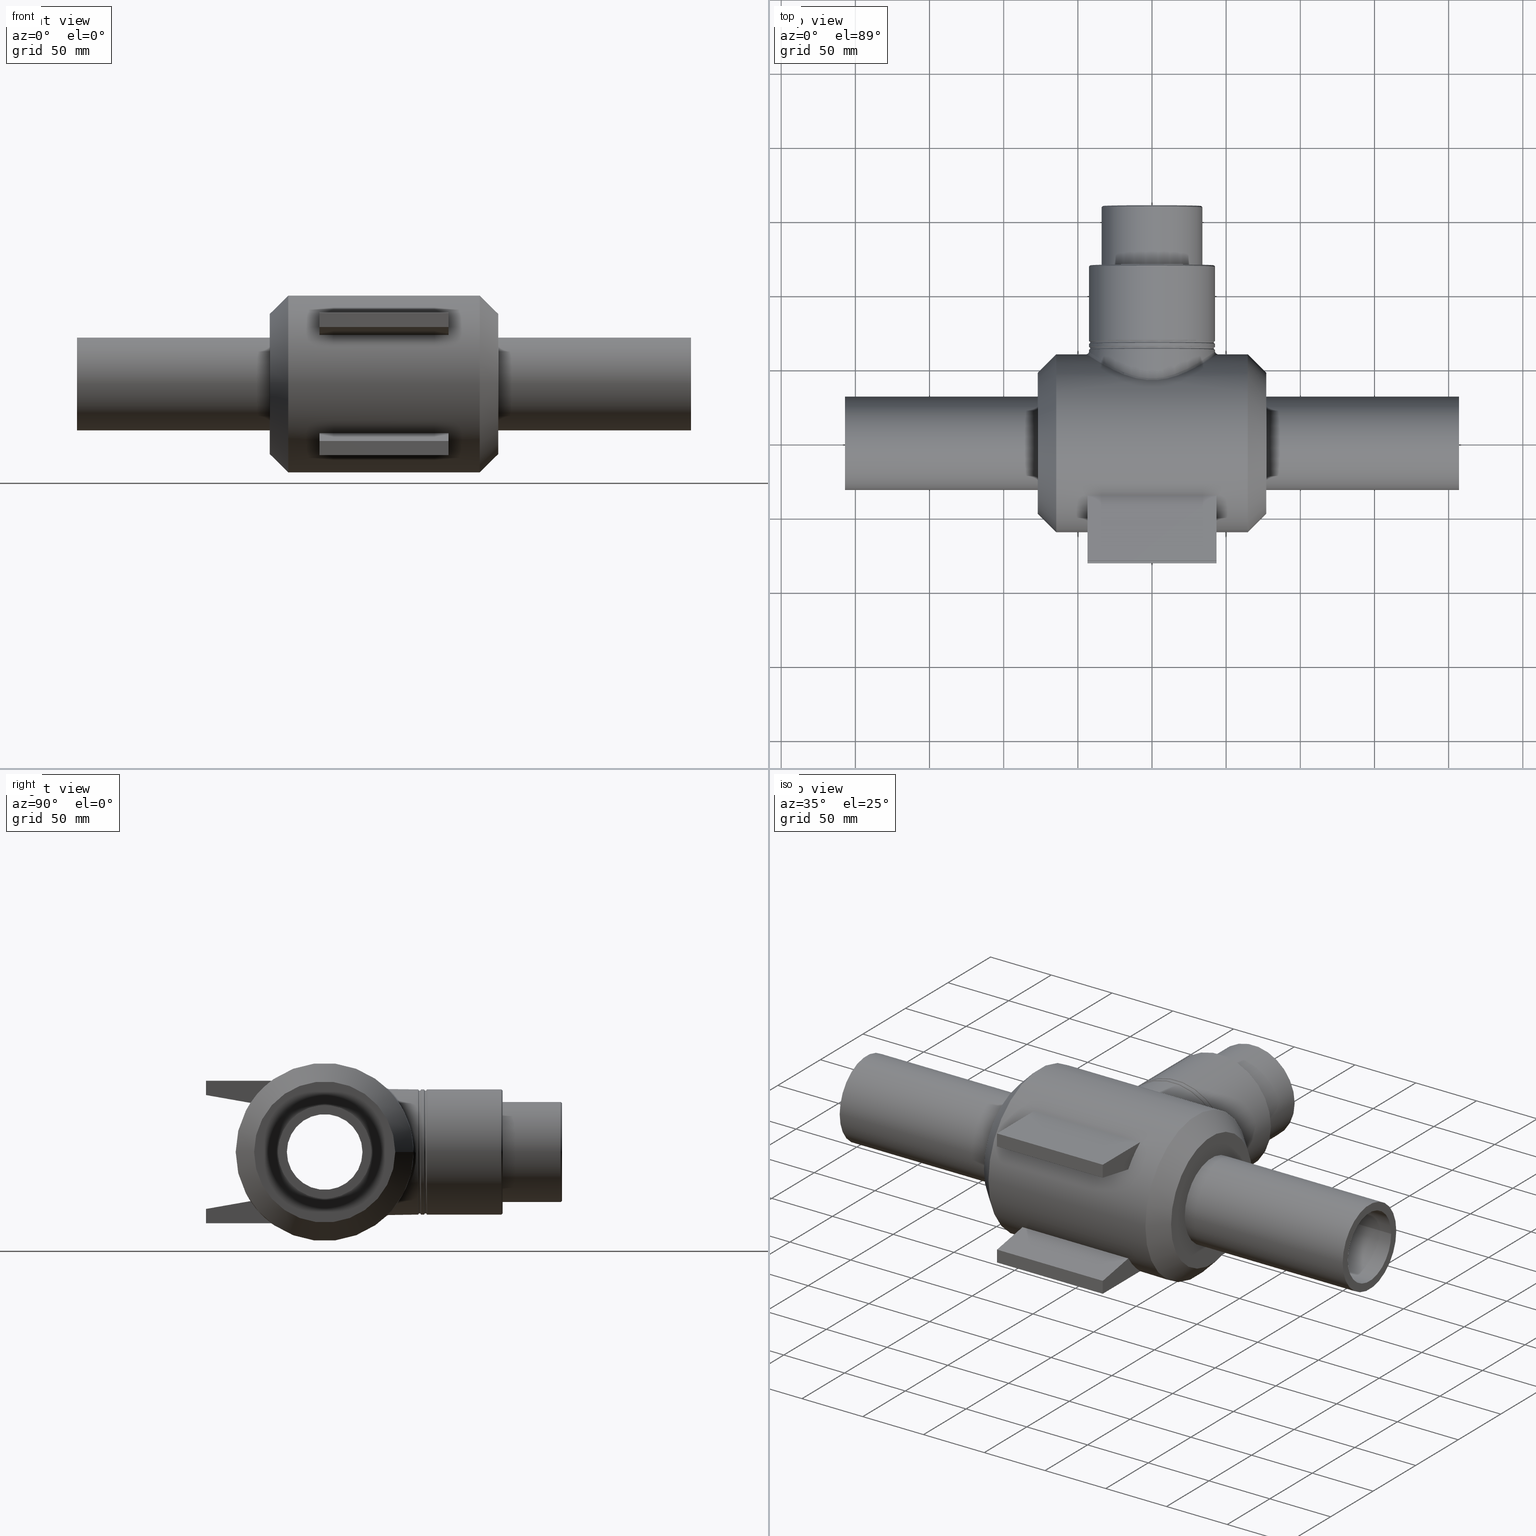
[diagram: canonical four-view strip — front | top / right | iso, engineering-drawing reading convention]
A machine part, canonical four-view strip (front | top / right | iso — engineering-drawing reading convention). The complete STEP part file that produces these views, byte-faithful:
ISO-10303-21;
HEADER;
/* Generated by software containing ST-Developer
 * from STEP Tools, Inc. (www.steptools.com) 
 */

FILE_DESCRIPTION(
/* description */ ('PLASSON PE BALL VALVE 63'),
/* implementation_level */ '2;1');

FILE_NAME(
/* name */ 
'C:\\Dropbox\\KIMPROJECTS-Inventor\\99-16-3568-Processing\\ElectroFusi
on Fittings\\436207\\436207063.ipt.stp',
/* time_stamp */ '2017-10-01T14:42:14+03:00',
/* author */ ('\X2\041A043804400438043B043B\X0\'),
/* organization */ (''),
/* preprocessor_version */ 'ST-DEVELOPER v15.6',
/* originating_system */ 'Autodesk Inventor 2015',
/* authorisation */ '');

FILE_SCHEMA (('AUTOMOTIVE_DESIGN { 1 0 10303 214 3 1 1 }'));
ENDSEC;

DATA;
#10=MECHANICAL_DESIGN_GEOMETRIC_PRESENTATION_REPRESENTATION('',(#13),#954);
#11=SHAPE_REPRESENTATION_RELATIONSHIP('SRR','None',#963,#12);
#12=ADVANCED_BREP_SHAPE_REPRESENTATION($,(#14),#953);
#13=STYLED_ITEM('',(#972),#14);
#14=MANIFOLD_SOLID_BREP('Solid1',#446);
#15=SPHERICAL_SURFACE('',#499,47.25);
#16=TOROIDAL_SURFACE('',#470,42.5,0.85);
#17=TOROIDAL_SURFACE('',#474,42.5,0.85);
#18=PLANE('',#463);
#19=PLANE('',#469);
#20=PLANE('',#475);
#21=PLANE('',#476);
#22=PLANE('',#477);
#23=PLANE('',#478);
#24=PLANE('',#479);
#25=PLANE('',#480);
#26=PLANE('',#481);
#27=PLANE('',#482);
#28=PLANE('',#483);
#29=PLANE('',#484);
#30=PLANE('',#485);
#31=PLANE('',#491);
#32=PLANE('',#495);
#33=PLANE('',#503);
#34=CONICAL_SURFACE('',#458,42.075,44.9999999999997);
#35=CONICAL_SURFACE('',#465,33.575,44.9999999999995);
#36=CONICAL_SURFACE('',#488,53.79,45.);
#37=CONICAL_SURFACE('',#489,53.79,45.);
#38=LINE('',#849,#58);
#39=LINE('',#852,#59);
#40=LINE('',#857,#60);
#41=LINE('',#860,#61);
#42=LINE('',#888,#62);
#43=LINE('',#890,#63);
#44=LINE('',#891,#64);
#45=LINE('',#894,#65);
#46=LINE('',#895,#66);
#47=LINE('',#898,#67);
#48=LINE('',#899,#68);
#49=LINE('',#901,#69);
#50=LINE('',#905,#70);
#51=LINE('',#907,#71);
#52=LINE('',#908,#72);
#53=LINE('',#911,#73);
#54=LINE('',#912,#74);
#55=LINE('',#915,#75);
#56=LINE('',#916,#76);
#57=LINE('',#918,#77);
#58=VECTOR('',#522,87.);
#59=VECTOR('',#525,87.);
#60=VECTOR('',#528,87.);
#61=VECTOR('',#531,87.);
#62=VECTOR('',#568,44.);
#63=VECTOR('',#569,9.60000000000001);
#64=VECTOR('',#570,30.429027259081);
#65=VECTOR('',#573,87.);
#66=VECTOR('',#574,30.429027259081);
#67=VECTOR('',#577,87.);
#68=VECTOR('',#578,9.60000000000001);
#69=VECTOR('',#581,44.);
#70=VECTOR('',#586,44.);
#71=VECTOR('',#587,30.429027259081);
#72=VECTOR('',#588,9.60000000000001);
#73=VECTOR('',#591,30.429027259081);
#74=VECTOR('',#592,87.);
#75=VECTOR('',#595,9.60000000000001);
#76=VECTOR('',#596,87.);
#77=VECTOR('',#599,44.);
#78=FACE_BOUND('',#146,.T.);
#79=FACE_BOUND('',#148,.T.);
#80=FACE_BOUND('',#149,.T.);
#81=FACE_BOUND('',#150,.T.);
#82=FACE_BOUND('',#151,.T.);
#83=FACE_BOUND('',#153,.T.);
#84=FACE_BOUND('',#155,.T.);
#85=FACE_BOUND('',#157,.T.);
#86=FACE_BOUND('',#159,.T.);
#87=FACE_BOUND('',#161,.T.);
#88=FACE_BOUND('',#164,.T.);
#89=FACE_BOUND('',#166,.T.);
#90=FACE_BOUND('',#168,.T.);
#91=FACE_BOUND('',#180,.T.);
#92=FACE_BOUND('',#182,.T.);
#93=FACE_BOUND('',#184,.T.);
#94=FACE_BOUND('',#186,.T.);
#95=FACE_BOUND('',#188,.T.);
#96=FACE_BOUND('',#190,.T.);
#97=FACE_BOUND('',#192,.T.);
#98=FACE_BOUND('',#193,.T.);
#99=FACE_BOUND('',#194,.T.);
#100=FACE_BOUND('',#196,.T.);
#101=FACE_BOUND('',#198,.T.);
#102=FACE_BOUND('',#200,.T.);
#103=CYLINDRICAL_SURFACE('',#449,42.5);
#104=CYLINDRICAL_SURFACE('',#451,60.);
#105=CYLINDRICAL_SURFACE('',#461,42.5);
#106=CYLINDRICAL_SURFACE('',#468,34.);
#107=CYLINDRICAL_SURFACE('',#472,42.5);
#108=CYLINDRICAL_SURFACE('',#493,31.5);
#109=CYLINDRICAL_SURFACE('',#497,25.5);
#110=CYLINDRICAL_SURFACE('',#501,25.5);
#111=CYLINDRICAL_SURFACE('',#505,31.5);
#112=FACE_OUTER_BOUND('',#144,.T.);
#113=FACE_OUTER_BOUND('',#145,.T.);
#114=FACE_OUTER_BOUND('',#147,.T.);
#115=FACE_OUTER_BOUND('',#152,.T.);
#116=FACE_OUTER_BOUND('',#154,.T.);
#117=FACE_OUTER_BOUND('',#156,.T.);
#118=FACE_OUTER_BOUND('',#158,.T.);
#119=FACE_OUTER_BOUND('',#160,.T.);
#120=FACE_OUTER_BOUND('',#162,.T.);
#121=FACE_OUTER_BOUND('',#163,.T.);
#122=FACE_OUTER_BOUND('',#165,.T.);
#123=FACE_OUTER_BOUND('',#167,.T.);
#124=FACE_OUTER_BOUND('',#169,.T.);
#125=FACE_OUTER_BOUND('',#170,.T.);
#126=FACE_OUTER_BOUND('',#171,.T.);
#127=FACE_OUTER_BOUND('',#172,.T.);
#128=FACE_OUTER_BOUND('',#173,.T.);
#129=FACE_OUTER_BOUND('',#174,.T.);
#130=FACE_OUTER_BOUND('',#175,.T.);
#131=FACE_OUTER_BOUND('',#176,.T.);
#132=FACE_OUTER_BOUND('',#177,.T.);
#133=FACE_OUTER_BOUND('',#178,.T.);
#134=FACE_OUTER_BOUND('',#179,.T.);
#135=FACE_OUTER_BOUND('',#181,.T.);
#136=FACE_OUTER_BOUND('',#183,.T.);
#137=FACE_OUTER_BOUND('',#185,.T.);
#138=FACE_OUTER_BOUND('',#187,.T.);
#139=FACE_OUTER_BOUND('',#189,.T.);
#140=FACE_OUTER_BOUND('',#191,.T.);
#141=FACE_OUTER_BOUND('',#195,.T.);
#142=FACE_OUTER_BOUND('',#197,.T.);
#143=FACE_OUTER_BOUND('',#199,.T.);
#144=EDGE_LOOP('',(#316,#317,#318,#319));
#145=EDGE_LOOP('',(#320));
#146=EDGE_LOOP('',(#321));
#147=EDGE_LOOP('',(#322));
#148=EDGE_LOOP('',(#323));
#149=EDGE_LOOP('',(#324,#325,#326,#327));
#150=EDGE_LOOP('',(#328,#329,#330,#331));
#151=EDGE_LOOP('',(#332));
#152=EDGE_LOOP('',(#333));
#153=EDGE_LOOP('',(#334));
#154=EDGE_LOOP('',(#335));
#155=EDGE_LOOP('',(#336));
#156=EDGE_LOOP('',(#337));
#157=EDGE_LOOP('',(#338));
#158=EDGE_LOOP('',(#339));
#159=EDGE_LOOP('',(#340));
#160=EDGE_LOOP('',(#341));
#161=EDGE_LOOP('',(#342));
#162=EDGE_LOOP('',(#343));
#163=EDGE_LOOP('',(#344));
#164=EDGE_LOOP('',(#345));
#165=EDGE_LOOP('',(#346));
#166=EDGE_LOOP('',(#347));
#167=EDGE_LOOP('',(#348));
#168=EDGE_LOOP('',(#349));
#169=EDGE_LOOP('',(#350,#351,#352,#353));
#170=EDGE_LOOP('',(#354,#355,#356,#357));
#171=EDGE_LOOP('',(#358,#359,#360,#361));
#172=EDGE_LOOP('',(#362,#363,#364,#365));
#173=EDGE_LOOP('',(#366,#367,#368,#369));
#174=EDGE_LOOP('',(#370,#371,#372,#373));
#175=EDGE_LOOP('',(#374,#375,#376,#377));
#176=EDGE_LOOP('',(#378,#379,#380,#381));
#177=EDGE_LOOP('',(#382,#383,#384,#385));
#178=EDGE_LOOP('',(#386,#387,#388,#389));
#179=EDGE_LOOP('',(#390));
#180=EDGE_LOOP('',(#391));
#181=EDGE_LOOP('',(#392));
#182=EDGE_LOOP('',(#393));
#183=EDGE_LOOP('',(#394));
#184=EDGE_LOOP('',(#395));
#185=EDGE_LOOP('',(#396));
#186=EDGE_LOOP('',(#397));
#187=EDGE_LOOP('',(#398));
#188=EDGE_LOOP('',(#399));
#189=EDGE_LOOP('',(#400));
#190=EDGE_LOOP('',(#401));
#191=EDGE_LOOP('',(#402));
#192=EDGE_LOOP('',(#403));
#193=EDGE_LOOP('',(#404));
#194=EDGE_LOOP('',(#405));
#195=EDGE_LOOP('',(#406));
#196=EDGE_LOOP('',(#407));
#197=EDGE_LOOP('',(#408));
#198=EDGE_LOOP('',(#409));
#199=EDGE_LOOP('',(#410));
#200=EDGE_LOOP('',(#411));
#201=B_SPLINE_CURVE_WITH_KNOTS('',3,(#783,#784,#785,#786,#787,#788,#789,
#790,#791,#792,#793,#794,#795,#796,#797,#798,#799,#800,#801,#802,#803,#804,
#805,#806,#807,#808,#809),.UNSPECIFIED.,.T.,.F.,(4,1,1,1,1,1,1,1,1,1,1,
1,1,1,1,1,1,1,1,1,1,1,1,1,4),(13.4378781643652,14.397726604677,15.3575750449888,
17.2772719256124,18.2371203659242,19.196968806236,20.1568172465478,21.1166656868596,
22.3964636072753,23.6762615276911,24.9560594481068,26.2358573685225,26.8757563287304,
27.5156552889383,28.795453209354,30.0752511297697,31.3550490501855,32.6348469706012,
33.9146448910169,35.1944428114327,35.4077424648353,36.4742407318484,38.393937612472,
39.3537860527838,40.3136344930956),.UNSPECIFIED.);
#202=B_SPLINE_CURVE_WITH_KNOTS('',3,(#810,#811,#812,#813,#814,#815,#816,
#817,#818,#819,#820,#821,#822,#823,#824,#825,#826,#827,#828,#829,#830,#831,
#832,#833,#834,#835,#836),.UNSPECIFIED.,.T.,.F.,(4,1,1,1,1,1,1,1,1,1,1,
1,1,1,1,1,1,1,1,1,1,1,1,1,4),(-40.3136344930956,-39.3537860527838,-38.393937612472,
-36.4742407318484,-35.4077424648353,-35.1944428114327,-33.9146448910169,
-32.6348469706012,-31.3550490501855,-30.0752511297697,-28.795453209354,
-27.5156552889383,-26.8757563287304,-26.2358573685225,-24.9560594481068,
-23.6762615276911,-22.3964636072753,-21.1166656868596,-20.1568172465478,
-19.196968806236,-18.2371203659242,-17.2772719256124,-15.3575750449888,
-14.397726604677,-13.4378781643652),.UNSPECIFIED.);
#203=CIRCLE('',#448,1.7);
#204=CIRCLE('',#450,42.5);
#205=CIRCLE('',#452,60.);
#206=CIRCLE('',#453,60.);
#207=CIRCLE('',#454,60.);
#208=CIRCLE('',#455,60.);
#209=CIRCLE('',#456,60.);
#210=CIRCLE('',#457,60.);
#211=CIRCLE('',#459,42.5);
#212=CIRCLE('',#460,41.65);
#213=CIRCLE('',#462,42.5);
#214=CIRCLE('',#464,34.);
#215=CIRCLE('',#466,34.);
#216=CIRCLE('',#467,33.15);
#217=CIRCLE('',#471,42.5);
#218=CIRCLE('',#473,42.5);
#219=CIRCLE('',#486,47.58);
#220=CIRCLE('',#487,31.5);
#221=CIRCLE('',#490,47.58);
#222=CIRCLE('',#492,31.5);
#223=CIRCLE('',#494,31.5);
#224=CIRCLE('',#496,25.5);
#225=CIRCLE('',#498,25.5);
#226=CIRCLE('',#500,25.5);
#227=CIRCLE('',#502,25.5);
#228=CIRCLE('',#504,31.5);
#229=VERTEX_POINT('',#780);
#230=VERTEX_POINT('',#781);
#231=VERTEX_POINT('',#838);
#232=VERTEX_POINT('',#841);
#233=VERTEX_POINT('',#843);
#234=VERTEX_POINT('',#845);
#235=VERTEX_POINT('',#846);
#236=VERTEX_POINT('',#848);
#237=VERTEX_POINT('',#850);
#238=VERTEX_POINT('',#853);
#239=VERTEX_POINT('',#854);
#240=VERTEX_POINT('',#856);
#241=VERTEX_POINT('',#858);
#242=VERTEX_POINT('',#862);
#243=VERTEX_POINT('',#864);
#244=VERTEX_POINT('',#867);
#245=VERTEX_POINT('',#870);
#246=VERTEX_POINT('',#873);
#247=VERTEX_POINT('',#875);
#248=VERTEX_POINT('',#880);
#249=VERTEX_POINT('',#883);
#250=VERTEX_POINT('',#887);
#251=VERTEX_POINT('',#889);
#252=VERTEX_POINT('',#893);
#253=VERTEX_POINT('',#897);
#254=VERTEX_POINT('',#904);
#255=VERTEX_POINT('',#906);
#256=VERTEX_POINT('',#910);
#257=VERTEX_POINT('',#914);
#258=VERTEX_POINT('',#921);
#259=VERTEX_POINT('',#923);
#260=VERTEX_POINT('',#927);
#261=VERTEX_POINT('',#930);
#262=VERTEX_POINT('',#933);
#263=VERTEX_POINT('',#936);
#264=VERTEX_POINT('',#939);
#265=VERTEX_POINT('',#942);
#266=VERTEX_POINT('',#945);
#267=VERTEX_POINT('',#948);
#268=EDGE_CURVE('',#229,#230,#203,.T.);
#269=EDGE_CURVE('',#230,#230,#201,.T.);
#270=EDGE_CURVE('',#229,#229,#202,.T.);
#271=EDGE_CURVE('',#231,#231,#204,.T.);
#272=EDGE_CURVE('',#232,#232,#205,.T.);
#273=EDGE_CURVE('',#233,#233,#206,.T.);
#274=EDGE_CURVE('',#234,#235,#207,.T.);
#275=EDGE_CURVE('',#235,#236,#38,.T.);
#276=EDGE_CURVE('',#236,#237,#208,.T.);
#277=EDGE_CURVE('',#237,#234,#39,.T.);
#278=EDGE_CURVE('',#238,#239,#209,.T.);
#279=EDGE_CURVE('',#239,#240,#40,.T.);
#280=EDGE_CURVE('',#240,#241,#210,.T.);
#281=EDGE_CURVE('',#241,#238,#41,.T.);
#282=EDGE_CURVE('',#242,#242,#211,.T.);
#283=EDGE_CURVE('',#243,#243,#212,.T.);
#284=EDGE_CURVE('',#244,#244,#213,.T.);
#285=EDGE_CURVE('',#245,#245,#214,.T.);
#286=EDGE_CURVE('',#246,#246,#215,.T.);
#287=EDGE_CURVE('',#247,#247,#216,.T.);
#288=EDGE_CURVE('',#248,#248,#217,.T.);
#289=EDGE_CURVE('',#249,#249,#218,.T.);
#290=EDGE_CURVE('',#250,#238,#42,.T.);
#291=EDGE_CURVE('',#251,#250,#43,.T.);
#292=EDGE_CURVE('',#239,#251,#44,.T.);
#293=EDGE_CURVE('',#251,#252,#45,.T.);
#294=EDGE_CURVE('',#252,#240,#46,.T.);
#295=EDGE_CURVE('',#250,#253,#47,.T.);
#296=EDGE_CURVE('',#253,#252,#48,.T.);
#297=EDGE_CURVE('',#241,#253,#49,.T.);
#298=EDGE_CURVE('',#254,#235,#50,.T.);
#299=EDGE_CURVE('',#234,#255,#51,.T.);
#300=EDGE_CURVE('',#255,#254,#52,.T.);
#301=EDGE_CURVE('',#256,#237,#53,.T.);
#302=EDGE_CURVE('',#255,#256,#54,.T.);
#303=EDGE_CURVE('',#257,#256,#55,.T.);
#304=EDGE_CURVE('',#254,#257,#56,.T.);
#305=EDGE_CURVE('',#236,#257,#57,.T.);
#306=EDGE_CURVE('',#258,#258,#219,.T.);
#307=EDGE_CURVE('',#259,#259,#220,.T.);
#308=EDGE_CURVE('',#260,#260,#221,.T.);
#309=EDGE_CURVE('',#261,#261,#222,.T.);
#310=EDGE_CURVE('',#262,#262,#223,.T.);
#311=EDGE_CURVE('',#263,#263,#224,.T.);
#312=EDGE_CURVE('',#264,#264,#225,.T.);
#313=EDGE_CURVE('',#265,#265,#226,.T.);
#314=EDGE_CURVE('',#266,#266,#227,.T.);
#315=EDGE_CURVE('',#267,#267,#228,.T.);
#316=ORIENTED_EDGE('',*,*,#268,.T.);
#317=ORIENTED_EDGE('',*,*,#269,.T.);
#318=ORIENTED_EDGE('',*,*,#268,.F.);
#319=ORIENTED_EDGE('',*,*,#270,.T.);
#320=ORIENTED_EDGE('',*,*,#271,.F.);
#321=ORIENTED_EDGE('',*,*,#269,.F.);
#322=ORIENTED_EDGE('',*,*,#272,.T.);
#323=ORIENTED_EDGE('',*,*,#273,.F.);
#324=ORIENTED_EDGE('',*,*,#274,.T.);
#325=ORIENTED_EDGE('',*,*,#275,.T.);
#326=ORIENTED_EDGE('',*,*,#276,.T.);
#327=ORIENTED_EDGE('',*,*,#277,.T.);
#328=ORIENTED_EDGE('',*,*,#278,.T.);
#329=ORIENTED_EDGE('',*,*,#279,.T.);
#330=ORIENTED_EDGE('',*,*,#280,.T.);
#331=ORIENTED_EDGE('',*,*,#281,.T.);
#332=ORIENTED_EDGE('',*,*,#270,.F.);
#333=ORIENTED_EDGE('',*,*,#282,.T.);
#334=ORIENTED_EDGE('',*,*,#283,.T.);
#335=ORIENTED_EDGE('',*,*,#284,.T.);
#336=ORIENTED_EDGE('',*,*,#282,.F.);
#337=ORIENTED_EDGE('',*,*,#283,.F.);
#338=ORIENTED_EDGE('',*,*,#285,.F.);
#339=ORIENTED_EDGE('',*,*,#286,.T.);
#340=ORIENTED_EDGE('',*,*,#287,.T.);
#341=ORIENTED_EDGE('',*,*,#285,.T.);
#342=ORIENTED_EDGE('',*,*,#286,.F.);
#343=ORIENTED_EDGE('',*,*,#287,.F.);
#344=ORIENTED_EDGE('',*,*,#271,.T.);
#345=ORIENTED_EDGE('',*,*,#288,.F.);
#346=ORIENTED_EDGE('',*,*,#288,.T.);
#347=ORIENTED_EDGE('',*,*,#289,.F.);
#348=ORIENTED_EDGE('',*,*,#289,.T.);
#349=ORIENTED_EDGE('',*,*,#284,.F.);
#350=ORIENTED_EDGE('',*,*,#290,.F.);
#351=ORIENTED_EDGE('',*,*,#291,.F.);
#352=ORIENTED_EDGE('',*,*,#292,.F.);
#353=ORIENTED_EDGE('',*,*,#278,.F.);
#354=ORIENTED_EDGE('',*,*,#279,.F.);
#355=ORIENTED_EDGE('',*,*,#292,.T.);
#356=ORIENTED_EDGE('',*,*,#293,.T.);
#357=ORIENTED_EDGE('',*,*,#294,.T.);
#358=ORIENTED_EDGE('',*,*,#293,.F.);
#359=ORIENTED_EDGE('',*,*,#291,.T.);
#360=ORIENTED_EDGE('',*,*,#295,.T.);
#361=ORIENTED_EDGE('',*,*,#296,.T.);
#362=ORIENTED_EDGE('',*,*,#295,.F.);
#363=ORIENTED_EDGE('',*,*,#290,.T.);
#364=ORIENTED_EDGE('',*,*,#281,.F.);
#365=ORIENTED_EDGE('',*,*,#297,.T.);
#366=ORIENTED_EDGE('',*,*,#297,.F.);
#367=ORIENTED_EDGE('',*,*,#280,.F.);
#368=ORIENTED_EDGE('',*,*,#294,.F.);
#369=ORIENTED_EDGE('',*,*,#296,.F.);
#370=ORIENTED_EDGE('',*,*,#298,.T.);
#371=ORIENTED_EDGE('',*,*,#274,.F.);
#372=ORIENTED_EDGE('',*,*,#299,.T.);
#373=ORIENTED_EDGE('',*,*,#300,.T.);
#374=ORIENTED_EDGE('',*,*,#277,.F.);
#375=ORIENTED_EDGE('',*,*,#301,.F.);
#376=ORIENTED_EDGE('',*,*,#302,.F.);
#377=ORIENTED_EDGE('',*,*,#299,.F.);
#378=ORIENTED_EDGE('',*,*,#302,.T.);
#379=ORIENTED_EDGE('',*,*,#303,.F.);
#380=ORIENTED_EDGE('',*,*,#304,.F.);
#381=ORIENTED_EDGE('',*,*,#300,.F.);
#382=ORIENTED_EDGE('',*,*,#304,.T.);
#383=ORIENTED_EDGE('',*,*,#305,.F.);
#384=ORIENTED_EDGE('',*,*,#275,.F.);
#385=ORIENTED_EDGE('',*,*,#298,.F.);
#386=ORIENTED_EDGE('',*,*,#305,.T.);
#387=ORIENTED_EDGE('',*,*,#303,.T.);
#388=ORIENTED_EDGE('',*,*,#301,.T.);
#389=ORIENTED_EDGE('',*,*,#276,.F.);
#390=ORIENTED_EDGE('',*,*,#306,.F.);
#391=ORIENTED_EDGE('',*,*,#307,.T.);
#392=ORIENTED_EDGE('',*,*,#272,.F.);
#393=ORIENTED_EDGE('',*,*,#306,.T.);
#394=ORIENTED_EDGE('',*,*,#308,.F.);
#395=ORIENTED_EDGE('',*,*,#273,.T.);
#396=ORIENTED_EDGE('',*,*,#308,.T.);
#397=ORIENTED_EDGE('',*,*,#309,.F.);
#398=ORIENTED_EDGE('',*,*,#310,.F.);
#399=ORIENTED_EDGE('',*,*,#309,.T.);
#400=ORIENTED_EDGE('',*,*,#310,.T.);
#401=ORIENTED_EDGE('',*,*,#311,.F.);
#402=ORIENTED_EDGE('',*,*,#312,.F.);
#403=ORIENTED_EDGE('',*,*,#311,.T.);
#404=ORIENTED_EDGE('',*,*,#313,.F.);
#405=ORIENTED_EDGE('',*,*,#312,.T.);
#406=ORIENTED_EDGE('',*,*,#314,.F.);
#407=ORIENTED_EDGE('',*,*,#313,.T.);
#408=ORIENTED_EDGE('',*,*,#315,.F.);
#409=ORIENTED_EDGE('',*,*,#314,.T.);
#410=ORIENTED_EDGE('',*,*,#307,.F.);
#411=ORIENTED_EDGE('',*,*,#315,.T.);
#412=B_SPLINE_SURFACE_WITH_KNOTS('',3,3,((#645,#646,#647,#648,#649,#650,
#651,#652,#653,#654,#655,#656,#657,#658,#659,#660,#661,#662,#663,#664,#665,
#666,#667,#668,#669,#670,#671),(#672,#673,#674,#675,#676,#677,#678,#679,
#680,#681,#682,#683,#684,#685,#686,#687,#688,#689,#690,#691,#692,#693,#694,
#695,#696,#697,#698),(#699,#700,#701,#702,#703,#704,#705,#706,#707,#708,
#709,#710,#711,#712,#713,#714,#715,#716,#717,#718,#719,#720,#721,#722,#723,
#724,#725),(#726,#727,#728,#729,#730,#731,#732,#733,#734,#735,#736,#737,
#738,#739,#740,#741,#742,#743,#744,#745,#746,#747,#748,#749,#750,#751,#752),
(#753,#754,#755,#756,#757,#758,#759,#760,#761,#762,#763,#764,#765,#766,
#767,#768,#769,#770,#771,#772,#773,#774,#775,#776,#777,#778,#779)),
 .UNSPECIFIED.,.F.,.T.,.F.,(4,1,4),(4,1,1,1,1,1,1,1,1,1,1,1,1,1,1,1,1,1,
1,1,1,1,1,1,4),(0.,0.571428571428571,1.),(13.4378781643652,14.397726604677,
15.3575750449888,17.2772719256124,18.2371203659242,19.196968806236,20.1568172465478,
21.1166656868596,22.3964636072753,23.6762615276911,24.9560594481068,26.2358573685225,
26.8757563287304,27.5156552889383,28.795453209354,30.0752511297697,31.3550490501855,
32.6348469706012,33.9146448910169,35.1944428114327,35.4077424648353,36.4742407318484,
38.393937612472,39.3537860527838,40.3136344930956),.UNSPECIFIED.);
#413=ADVANCED_FACE('',(#112),#412,.T.);
#414=ADVANCED_FACE('',(#113,#78),#103,.T.);
#415=ADVANCED_FACE('',(#114,#79,#80,#81,#82),#104,.T.);
#416=ADVANCED_FACE('',(#115,#83),#34,.T.);
#417=ADVANCED_FACE('',(#116,#84),#105,.T.);
#418=ADVANCED_FACE('',(#117,#85),#18,.T.);
#419=ADVANCED_FACE('',(#118,#86),#35,.T.);
#420=ADVANCED_FACE('',(#119,#87),#106,.T.);
#421=ADVANCED_FACE('',(#120),#19,.T.);
#422=ADVANCED_FACE('',(#121,#88),#16,.F.);
#423=ADVANCED_FACE('',(#122,#89),#107,.T.);
#424=ADVANCED_FACE('',(#123,#90),#17,.F.);
#425=ADVANCED_FACE('',(#124),#20,.T.);
#426=ADVANCED_FACE('',(#125),#21,.F.);
#427=ADVANCED_FACE('',(#126),#22,.F.);
#428=ADVANCED_FACE('',(#127),#23,.F.);
#429=ADVANCED_FACE('',(#128),#24,.F.);
#430=ADVANCED_FACE('',(#129),#25,.F.);
#431=ADVANCED_FACE('',(#130),#26,.T.);
#432=ADVANCED_FACE('',(#131),#27,.T.);
#433=ADVANCED_FACE('',(#132),#28,.T.);
#434=ADVANCED_FACE('',(#133),#29,.T.);
#435=ADVANCED_FACE('',(#134,#91),#30,.T.);
#436=ADVANCED_FACE('',(#135,#92),#36,.T.);
#437=ADVANCED_FACE('',(#136,#93),#37,.T.);
#438=ADVANCED_FACE('',(#137,#94),#31,.T.);
#439=ADVANCED_FACE('',(#138,#95),#108,.T.);
#440=ADVANCED_FACE('',(#139,#96),#32,.T.);
#441=ADVANCED_FACE('',(#140,#97),#109,.F.);
#442=ADVANCED_FACE('',(#98,#99),#15,.F.);
#443=ADVANCED_FACE('',(#141,#100),#110,.F.);
#444=ADVANCED_FACE('',(#142,#101),#33,.T.);
#445=ADVANCED_FACE('',(#143,#102),#111,.T.);
#446=CLOSED_SHELL('',(#413,#414,#415,#416,#417,#418,#419,#420,#421,#422,
#423,#424,#425,#426,#427,#428,#429,#430,#431,#432,#433,#434,#435,#436,#437,
#438,#439,#440,#441,#442,#443,#444,#445));
#447=AXIS2_PLACEMENT_3D('placement',#644,#506,#507);
#448=AXIS2_PLACEMENT_3D('',#782,#508,#509);
#449=AXIS2_PLACEMENT_3D('',#837,#510,#511);
#450=AXIS2_PLACEMENT_3D('',#839,#512,#513);
#451=AXIS2_PLACEMENT_3D('',#840,#514,#515);
#452=AXIS2_PLACEMENT_3D('',#842,#516,#517);
#453=AXIS2_PLACEMENT_3D('',#844,#518,#519);
#454=AXIS2_PLACEMENT_3D('',#847,#520,#521);
#455=AXIS2_PLACEMENT_3D('',#851,#523,#524);
#456=AXIS2_PLACEMENT_3D('',#855,#526,#527);
#457=AXIS2_PLACEMENT_3D('',#859,#529,#530);
#458=AXIS2_PLACEMENT_3D('',#861,#532,#533);
#459=AXIS2_PLACEMENT_3D('',#863,#534,#535);
#460=AXIS2_PLACEMENT_3D('',#865,#536,#537);
#461=AXIS2_PLACEMENT_3D('',#866,#538,#539);
#462=AXIS2_PLACEMENT_3D('',#868,#540,#541);
#463=AXIS2_PLACEMENT_3D('',#869,#542,#543);
#464=AXIS2_PLACEMENT_3D('',#871,#544,#545);
#465=AXIS2_PLACEMENT_3D('',#872,#546,#547);
#466=AXIS2_PLACEMENT_3D('',#874,#548,#549);
#467=AXIS2_PLACEMENT_3D('',#876,#550,#551);
#468=AXIS2_PLACEMENT_3D('',#877,#552,#553);
#469=AXIS2_PLACEMENT_3D('',#878,#554,#555);
#470=AXIS2_PLACEMENT_3D('',#879,#556,#557);
#471=AXIS2_PLACEMENT_3D('',#881,#558,#559);
#472=AXIS2_PLACEMENT_3D('',#882,#560,#561);
#473=AXIS2_PLACEMENT_3D('',#884,#562,#563);
#474=AXIS2_PLACEMENT_3D('',#885,#564,#565);
#475=AXIS2_PLACEMENT_3D('',#886,#566,#567);
#476=AXIS2_PLACEMENT_3D('',#892,#571,#572);
#477=AXIS2_PLACEMENT_3D('',#896,#575,#576);
#478=AXIS2_PLACEMENT_3D('',#900,#579,#580);
#479=AXIS2_PLACEMENT_3D('',#902,#582,#583);
#480=AXIS2_PLACEMENT_3D('',#903,#584,#585);
#481=AXIS2_PLACEMENT_3D('',#909,#589,#590);
#482=AXIS2_PLACEMENT_3D('',#913,#593,#594);
#483=AXIS2_PLACEMENT_3D('',#917,#597,#598);
#484=AXIS2_PLACEMENT_3D('',#919,#600,#601);
#485=AXIS2_PLACEMENT_3D('',#920,#602,#603);
#486=AXIS2_PLACEMENT_3D('',#922,#604,#605);
#487=AXIS2_PLACEMENT_3D('',#924,#606,#607);
#488=AXIS2_PLACEMENT_3D('',#925,#608,#609);
#489=AXIS2_PLACEMENT_3D('',#926,#610,#611);
#490=AXIS2_PLACEMENT_3D('',#928,#612,#613);
#491=AXIS2_PLACEMENT_3D('',#929,#614,#615);
#492=AXIS2_PLACEMENT_3D('',#931,#616,#617);
#493=AXIS2_PLACEMENT_3D('',#932,#618,#619);
#494=AXIS2_PLACEMENT_3D('',#934,#620,#621);
#495=AXIS2_PLACEMENT_3D('',#935,#622,#623);
#496=AXIS2_PLACEMENT_3D('',#937,#624,#625);
#497=AXIS2_PLACEMENT_3D('',#938,#626,#627);
#498=AXIS2_PLACEMENT_3D('',#940,#628,#629);
#499=AXIS2_PLACEMENT_3D('',#941,#630,#631);
#500=AXIS2_PLACEMENT_3D('',#943,#632,#633);
#501=AXIS2_PLACEMENT_3D('',#944,#634,#635);
#502=AXIS2_PLACEMENT_3D('',#946,#636,#637);
#503=AXIS2_PLACEMENT_3D('',#947,#638,#639);
#504=AXIS2_PLACEMENT_3D('',#949,#640,#641);
#505=AXIS2_PLACEMENT_3D('',#950,#642,#643);
#506=DIRECTION('axis',(0.,0.,1.));
#507=DIRECTION('refdir',(1.,0.,0.));
#508=DIRECTION('center_axis',(-1.,1.0721612852354E-15,8.16340459283208E-16));
#509=DIRECTION('ref_axis',(-1.63268091856641E-16,-0.697721073575106,0.716369529983794));
#510=DIRECTION('center_axis',(0.,1.,0.));
#511=DIRECTION('ref_axis',(-1.,0.,0.));
#512=DIRECTION('center_axis',(0.,1.,0.));
#513=DIRECTION('ref_axis',(1.,0.,0.));
#514=DIRECTION('center_axis',(1.,0.,0.));
#515=DIRECTION('ref_axis',(0.,1.,0.));
#516=DIRECTION('center_axis',(1.,0.,0.));
#517=DIRECTION('ref_axis',(0.,0.,-1.));
#518=DIRECTION('center_axis',(1.,0.,0.));
#519=DIRECTION('ref_axis',(0.,0.,-1.));
#520=DIRECTION('center_axis',(-1.,0.,0.));
#521=DIRECTION('ref_axis',(0.,1.,0.));
#522=DIRECTION('',(1.,0.,0.));
#523=DIRECTION('center_axis',(1.,0.,0.));
#524=DIRECTION('ref_axis',(0.,1.,0.));
#525=DIRECTION('',(-1.,0.,0.));
#526=DIRECTION('center_axis',(-1.,0.,0.));
#527=DIRECTION('ref_axis',(0.,1.,0.));
#528=DIRECTION('',(1.,0.,0.));
#529=DIRECTION('center_axis',(1.,0.,0.));
#530=DIRECTION('ref_axis',(0.,1.,0.));
#531=DIRECTION('',(-1.,0.,0.));
#532=DIRECTION('center_axis',(0.,-1.,0.));
#533=DIRECTION('ref_axis',(1.,0.,0.));
#534=DIRECTION('center_axis',(0.,1.,0.));
#535=DIRECTION('ref_axis',(1.,0.,0.));
#536=DIRECTION('center_axis',(0.,-1.,0.));
#537=DIRECTION('ref_axis',(1.,0.,0.));
#538=DIRECTION('center_axis',(0.,1.,0.));
#539=DIRECTION('ref_axis',(-1.,0.,0.));
#540=DIRECTION('center_axis',(0.,1.,0.));
#541=DIRECTION('ref_axis',(1.,0.,0.));
#542=DIRECTION('center_axis',(0.,1.,0.));
#543=DIRECTION('ref_axis',(0.,0.,1.));
#544=DIRECTION('center_axis',(0.,1.,0.));
#545=DIRECTION('ref_axis',(1.,0.,0.));
#546=DIRECTION('center_axis',(0.,-1.,0.));
#547=DIRECTION('ref_axis',(1.,0.,0.));
#548=DIRECTION('center_axis',(0.,1.,0.));
#549=DIRECTION('ref_axis',(1.,0.,0.));
#550=DIRECTION('center_axis',(0.,-1.,0.));
#551=DIRECTION('ref_axis',(1.,0.,0.));
#552=DIRECTION('center_axis',(0.,1.,0.));
#553=DIRECTION('ref_axis',(-1.,0.,0.));
#554=DIRECTION('center_axis',(0.,1.,0.));
#555=DIRECTION('ref_axis',(0.,0.,1.));
#556=DIRECTION('center_axis',(0.,1.,0.));
#557=DIRECTION('ref_axis',(0.,0.,1.));
#558=DIRECTION('center_axis',(0.,1.,0.));
#559=DIRECTION('ref_axis',(1.,0.,0.));
#560=DIRECTION('center_axis',(0.,1.,0.));
#561=DIRECTION('ref_axis',(-1.,0.,0.));
#562=DIRECTION('center_axis',(0.,1.,0.));
#563=DIRECTION('ref_axis',(1.,0.,0.));
#564=DIRECTION('center_axis',(0.,1.,0.));
#565=DIRECTION('ref_axis',(0.,0.,1.));
#566=DIRECTION('center_axis',(-1.,0.,0.));
#567=DIRECTION('ref_axis',(0.,0.,1.));
#568=DIRECTION('',(0.,1.,0.));
#569=DIRECTION('',(0.,0.,-1.));
#570=DIRECTION('',(0.,-0.984807753012208,-0.17364817766693));
#571=DIRECTION('center_axis',(0.,0.17364817766693,-0.984807753012208));
#572=DIRECTION('ref_axis',(0.,0.984807753012208,0.17364817766693));
#573=DIRECTION('',(1.,0.,0.));
#574=DIRECTION('',(0.,0.984807753012208,0.17364817766693));
#575=DIRECTION('center_axis',(0.,1.,0.));
#576=DIRECTION('ref_axis',(0.,0.,1.));
#577=DIRECTION('',(1.,0.,0.));
#578=DIRECTION('',(0.,0.,1.));
#579=DIRECTION('center_axis',(0.,0.,1.));
#580=DIRECTION('ref_axis',(0.,-1.,0.));
#581=DIRECTION('',(0.,-1.,0.));
#582=DIRECTION('center_axis',(-1.,0.,0.));
#583=DIRECTION('ref_axis',(0.,0.,1.));
#584=DIRECTION('center_axis',(1.,0.,0.));
#585=DIRECTION('ref_axis',(0.,0.,-1.));
#586=DIRECTION('',(0.,1.,0.));
#587=DIRECTION('',(0.,-0.984807753012208,0.17364817766693));
#588=DIRECTION('',(0.,0.,1.));
#589=DIRECTION('center_axis',(0.,-0.17364817766693,-0.984807753012208));
#590=DIRECTION('ref_axis',(0.,0.984807753012208,-0.17364817766693));
#591=DIRECTION('',(0.,0.984807753012208,-0.17364817766693));
#592=DIRECTION('',(1.,0.,0.));
#593=DIRECTION('center_axis',(0.,-1.,0.));
#594=DIRECTION('ref_axis',(0.,0.,-1.));
#595=DIRECTION('',(0.,0.,-1.));
#596=DIRECTION('',(1.,0.,0.));
#597=DIRECTION('center_axis',(0.,0.,1.));
#598=DIRECTION('ref_axis',(0.,-1.,0.));
#599=DIRECTION('',(0.,-1.,0.));
#600=DIRECTION('center_axis',(1.,0.,0.));
#601=DIRECTION('ref_axis',(0.,0.,-1.));
#602=DIRECTION('center_axis',(-1.,0.,0.));
#603=DIRECTION('ref_axis',(0.,0.,1.));
#604=DIRECTION('center_axis',(1.,0.,0.));
#605=DIRECTION('ref_axis',(0.,0.,-1.));
#606=DIRECTION('center_axis',(1.,0.,0.));
#607=DIRECTION('ref_axis',(0.,0.,-1.));
#608=DIRECTION('center_axis',(1.,0.,0.));
#609=DIRECTION('ref_axis',(0.,1.,0.));
#610=DIRECTION('center_axis',(-1.,0.,0.));
#611=DIRECTION('ref_axis',(0.,1.,0.));
#612=DIRECTION('center_axis',(1.,0.,0.));
#613=DIRECTION('ref_axis',(0.,0.,-1.));
#614=DIRECTION('center_axis',(1.,0.,0.));
#615=DIRECTION('ref_axis',(0.,0.,-1.));
#616=DIRECTION('center_axis',(1.,0.,0.));
#617=DIRECTION('ref_axis',(0.,0.,-1.));
#618=DIRECTION('center_axis',(1.,0.,0.));
#619=DIRECTION('ref_axis',(0.,1.,0.));
#620=DIRECTION('center_axis',(1.,0.,0.));
#621=DIRECTION('ref_axis',(0.,0.,-1.));
#622=DIRECTION('center_axis',(1.,0.,0.));
#623=DIRECTION('ref_axis',(0.,0.,-1.));
#624=DIRECTION('center_axis',(1.,0.,0.));
#625=DIRECTION('ref_axis',(0.,0.,-1.));
#626=DIRECTION('center_axis',(1.,0.,0.));
#627=DIRECTION('ref_axis',(0.,1.,0.));
#628=DIRECTION('center_axis',(1.,0.,0.));
#629=DIRECTION('ref_axis',(0.,0.,-1.));
#630=DIRECTION('center_axis',(6.12323399573677E-17,0.,1.));
#631=DIRECTION('ref_axis',(1.,0.,0.));
#632=DIRECTION('center_axis',(1.,0.,0.));
#633=DIRECTION('ref_axis',(0.,0.,-1.));
#634=DIRECTION('center_axis',(1.,0.,0.));
#635=DIRECTION('ref_axis',(0.,1.,0.));
#636=DIRECTION('center_axis',(1.,0.,0.));
#637=DIRECTION('ref_axis',(0.,0.,-1.));
#638=DIRECTION('center_axis',(-1.,0.,0.));
#639=DIRECTION('ref_axis',(0.,0.,1.));
#640=DIRECTION('center_axis',(1.,0.,0.));
#641=DIRECTION('ref_axis',(0.,0.,-1.));
#642=DIRECTION('center_axis',(1.,0.,0.));
#643=DIRECTION('ref_axis',(0.,1.,0.));
#644=CARTESIAN_POINT('',(0.,0.,0.));
#645=CARTESIAN_POINT('Ctrl Pts',(1.30726340486407E-5,41.8619343643239,-42.9827203600739));
#646=CARTESIAN_POINT('Ctrl Pts',(3.44627590826178,41.8619214561694,-42.9826494869613));
#647=CARTESIAN_POINT('Ctrl Pts',(10.3387206418775,42.703936617458,-42.1821298657049));
#648=CARTESIAN_POINT('Ctrl Pts',(22.7596918457645,46.8597143785439,-37.7698269350949));
#649=CARTESIAN_POINT('Ctrl Pts',(32.7886078867227,52.4995667160428,-29.9801931316612));
#650=CARTESIAN_POINT('Ctrl Pts',(39.9006440021849,57.0446183216193,-19.3242555684438));
#651=CARTESIAN_POINT('Ctrl Pts',(43.3803933054945,59.4290117515072,-10.0570186221333));
#652=CARTESIAN_POINT('Ctrl Pts',(44.6108794121551,60.2860000880844,-0.00206115194141561));
#653=CARTESIAN_POINT('Ctrl Pts',(43.2440813262744,59.3329682849007,11.1821480554777));
#654=CARTESIAN_POINT('Ctrl Pts',(38.5285827979598,56.1117635161992,22.3235997106214));
#655=CARTESIAN_POINT('Ctrl Pts',(30.3469440605788,51.0493249331023,32.0464942816199));
#656=CARTESIAN_POINT('Ctrl Pts',(19.8337195842178,45.7134191364853,39.095923618414));
#657=CARTESIAN_POINT('Ctrl Pts',(9.20306959360289,42.4117512583916,42.4520272199412));
#658=CARTESIAN_POINT('Ctrl Pts',(0.00126723881671252,41.6799426826442,43.1593477275519));
#659=CARTESIAN_POINT('Ctrl Pts',(-9.2052202763376,42.4123326520078,42.4518714702905));
#660=CARTESIAN_POINT('Ctrl Pts',(-19.8311637697037,45.7121867208487,39.0961972927906));
#661=CARTESIAN_POINT('Ctrl Pts',(-30.3488158377602,51.0511860946112,32.0466470499162));
#662=CARTESIAN_POINT('Ctrl Pts',(-38.5258742699626,56.1088455984774,22.3225373809327));
#663=CARTESIAN_POINT('Ctrl Pts',(-43.6790800458981,59.630941010684,10.1710923024498));
#664=CARTESIAN_POINT('Ctrl Pts',(-44.7955477940022,60.4172896385186,-3.43898308027606));
#665=CARTESIAN_POINT('Ctrl Pts',(-42.446356099597,58.7776569367819,-12.8831228382235));
#666=CARTESIAN_POINT('Ctrl Pts',(-38.903942139089,56.4096990340295,-20.7922445860544));
#667=CARTESIAN_POINT('Ctrl Pts',(-33.0667059367313,52.6562168536819,-29.7678476314516));
#668=CARTESIAN_POINT('Ctrl Pts',(-22.7595682983311,46.8595328535424,-37.7683540006525));
#669=CARTESIAN_POINT('Ctrl Pts',(-10.3388563718889,42.7040140663851,-42.1825551043804));
#670=CARTESIAN_POINT('Ctrl Pts',(-3.44624976299369,41.8619472724785,-42.9827912331865));
#671=CARTESIAN_POINT('Ctrl Pts',(1.30726340486407E-5,41.8619343643239,-42.9827203600739));
#672=CARTESIAN_POINT('Ctrl Pts',(1.41647410878764E-5,42.0410862358886,-42.8083047929439));
#673=CARTESIAN_POINT('Ctrl Pts',(3.41829926267474,42.0410720454904,-42.8082417164557));
#674=CARTESIAN_POINT('Ctrl Pts',(10.2547794336809,42.881823854487,-42.0019532383407));
#675=CARTESIAN_POINT('Ctrl Pts',(22.5659140490872,47.0269592994794,-37.5641209318662));
#676=CARTESIAN_POINT('Ctrl Pts',(32.4806669318896,52.6288558297874,-29.7485356757773));
#677=CARTESIAN_POINT('Ctrl Pts',(39.47929194859,57.1069981702044,-19.1293345230881));
#678=CARTESIAN_POINT('Ctrl Pts',(42.8904099140548,59.4432223667173,-9.93813546687996));
#679=CARTESIAN_POINT('Ctrl Pts',(44.0927333547885,60.2786386785986,-0.00196652274256191));
#680=CARTESIAN_POINT('Ctrl Pts',(42.7572301207448,59.3495122418531,11.0495852885521));
#681=CARTESIAN_POINT('Ctrl Pts',(38.1338005409829,56.1926755233189,22.1085828032242));
#682=CARTESIAN_POINT('Ctrl Pts',(30.0684276618158,51.189874348952,31.8218876118929));
#683=CARTESIAN_POINT('Ctrl Pts',(19.6672533303789,45.8847183199445,38.8963946261179));
#684=CARTESIAN_POINT('Ctrl Pts',(9.12848411314825,42.590042688574,42.2740205567705));
#685=CARTESIAN_POINT('Ctrl Pts',(0.00124704256382437,41.8593799724328,42.986082239492));
#686=CARTESIAN_POINT('Ctrl Pts',(-9.1305803787834,42.5905832426394,42.2738417011799));
#687=CARTESIAN_POINT('Ctrl Pts',(-19.6648293155826,45.8836331269419,38.896765927067));
#688=CARTESIAN_POINT('Ctrl Pts',(-30.0701284535294,51.1915281878952,31.8219044566244));
#689=CARTESIAN_POINT('Ctrl Pts',(-38.1313614541296,56.1900134203893,22.1076940370313));
#690=CARTESIAN_POINT('Ctrl Pts',(-43.1832590730849,59.6410027074497,10.045710212926));
#691=CARTESIAN_POINT('Ctrl Pts',(-44.2732934462467,60.4068980096311,-3.394129802366));
#692=CARTESIAN_POINT('Ctrl Pts',(-41.9760653790407,58.8061185219392,-12.7385116834655));
#693=CARTESIAN_POINT('Ctrl Pts',(-38.4983522921733,56.4814162029272,-20.5927271892567));
#694=CARTESIAN_POINT('Ctrl Pts',(-32.7556736194546,52.784491307693,-29.5351197480086));
#695=CARTESIAN_POINT('Ctrl Pts',(-22.5657519959286,47.0267536590076,-37.5628002302652));
#696=CARTESIAN_POINT('Ctrl Pts',(-10.254931153921,42.8819089968758,-42.0023316972698));
#697=CARTESIAN_POINT('Ctrl Pts',(-3.41827093319258,42.0411004262867,-42.8083678694321));
#698=CARTESIAN_POINT('Ctrl Pts',(1.41647410878764E-5,42.0410862358886,-42.8083047929439));
#699=CARTESIAN_POINT('Ctrl Pts',(1.68918110440024E-5,42.4228753042223,-42.5735623126394));
#700=CARTESIAN_POINT('Ctrl Pts',(3.36935967689506,42.4228570550228,-42.5735086507913));
#701=CARTESIAN_POINT('Ctrl Pts',(10.1079326286569,43.269611014433,-41.7631692906628));
#702=CARTESIAN_POINT('Ctrl Pts',(22.2273148842695,47.4430831645095,-37.3090246452757));
#703=CARTESIAN_POINT('Ctrl Pts',(31.9431393216527,53.0712275259522,-29.4786110830109));
#704=CARTESIAN_POINT('Ctrl Pts',(38.747204635864,57.5487723482968,-18.9076332253558));
#705=CARTESIAN_POINT('Ctrl Pts',(42.0414393582178,59.8746518547258,-9.80442189180912));
#706=CARTESIAN_POINT('Ctrl Pts',(43.1961848052561,60.7031475660768,-0.00156707023052841));
#707=CARTESIAN_POINT('Ctrl Pts',(41.9136975519811,59.7819413006998,10.9000424891464));
#708=CARTESIAN_POINT('Ctrl Pts',(37.4469259592216,56.6378790165836,21.8636034703606));
#709=CARTESIAN_POINT('Ctrl Pts',(29.5822577069787,51.6263753164134,31.556366495297));
#710=CARTESIAN_POINT('Ctrl Pts',(19.3761678474386,46.2933816462958,38.6447640396413));
#711=CARTESIAN_POINT('Ctrl Pts',(8.9980474913069,42.9758144566801,42.0369095365028));
#712=CARTESIAN_POINT('Ctrl Pts',(0.00122305757561077,42.2398293476517,42.7520621376688));
#713=CARTESIAN_POINT('Ctrl Pts',(-9.00008854479103,42.9763628102839,42.0367121571184));
#714=CARTESIAN_POINT('Ctrl Pts',(-19.3738829699822,46.2922746010168,38.6452076364496));
#715=CARTESIAN_POINT('Ctrl Pts',(-29.5837650199195,51.628023295841,31.5562454003642));
#716=CARTESIAN_POINT('Ctrl Pts',(-37.4449639628746,56.6354681858888,21.8630236330746));
#717=CARTESIAN_POINT('Ctrl Pts',(-42.3245444584025,60.0718509383735,9.90444600100246));
#718=CARTESIAN_POINT('Ctrl Pts',(-43.3695415413629,60.830216692603,-3.34346798826353));
#719=CARTESIAN_POINT('Ctrl Pts',(-41.1610782902095,59.2419547140518,-12.5750494240085));
#720=CARTESIAN_POINT('Ctrl Pts',(-37.7930060823377,56.9227898154532,-20.3648957100104));
#721=CARTESIAN_POINT('Ctrl Pts',(-32.2128462923479,53.2277983191082,-29.2643506017706));
#722=CARTESIAN_POINT('Ctrl Pts',(-22.2270563030159,47.4427969830502,-37.3078884951788));
#723=CARTESIAN_POINT('Ctrl Pts',(-10.1081240818473,43.26972050963,-41.7634912617517));
#724=CARTESIAN_POINT('Ctrl Pts',(-3.36932589327298,42.4228935534217,-42.5736159744876));
#725=CARTESIAN_POINT('Ctrl Pts',(1.68918110440024E-5,42.4228753042223,-42.5735623126394));
#726=CARTESIAN_POINT('Ctrl Pts',(1.3888099492751E-5,42.8604996905016,-42.5005754214319));
#727=CARTESIAN_POINT('Ctrl Pts',(3.32868788241915,42.8604848210163,-42.5005116065058));
#728=CARTESIAN_POINT('Ctrl Pts',(9.98594742211029,43.7206217645603,-41.7014778865607));
#729=CARTESIAN_POINT('Ctrl Pts',(21.9705067687882,47.9641752981144,-37.302700467688));
#730=CARTESIAN_POINT('Ctrl Pts',(31.6125822967301,53.7124385462342,-29.5531608443084));
#731=CARTESIAN_POINT('Ctrl Pts',(38.4111857352388,58.3275850471399,-19.0119393568255));
#732=CARTESIAN_POINT('Ctrl Pts',(41.7227412242473,60.7418417493438,-9.88054018034096));
#733=CARTESIAN_POINT('Ctrl Pts',(42.8895342871395,61.6073392887995,-0.00188615694598127));
#734=CARTESIAN_POINT('Ctrl Pts',(41.5934959969757,60.6448964962772,10.9854980262089));
#735=CARTESIAN_POINT('Ctrl Pts',(37.1049939723614,57.3827598596585,21.9710311388285));
#736=CARTESIAN_POINT('Ctrl Pts',(29.2673135353965,52.2350379663976,31.6089075297878));
#737=CARTESIAN_POINT('Ctrl Pts',(19.1492708463285,46.7940988893772,38.6234513979557));
#738=CARTESIAN_POINT('Ctrl Pts',(8.88924939859468,43.4221631215207,41.9710779523976));
#739=CARTESIAN_POINT('Ctrl Pts',(0.00121572570950705,42.6745791301987,42.6767644429655));
#740=CARTESIAN_POINT('Ctrl Pts',(-8.89129632272906,43.4227477569491,41.9709074033591));
#741=CARTESIAN_POINT('Ctrl Pts',(-19.1469144398476,46.7928740623821,38.6237898454385));
#742=CARTESIAN_POINT('Ctrl Pts',(-29.2689634652686,52.236878430565,31.6089566372748));
#743=CARTESIAN_POINT('Ctrl Pts',(-37.1026513881262,57.3799391572288,21.9701457462636));
#744=CARTESIAN_POINT('Ctrl Pts',(-42.0070652460456,60.9463801440308,9.98834092616656));
#745=CARTESIAN_POINT('Ctrl Pts',(-43.0647047921614,61.7399599084455,-3.37516062656602));
#746=CARTESIAN_POINT('Ctrl Pts',(-40.8353784789943,60.0831607864109,-12.6630737832469));
#747=CARTESIAN_POINT('Ctrl Pts',(-37.4582074415847,57.6827055915765,-20.4645086751593));
#748=CARTESIAN_POINT('Ctrl Pts',(-31.8800367059581,53.872180069902,-29.3416035620238));
#749=CARTESIAN_POINT('Ctrl Pts',(-21.9703454282033,47.9639566542355,-37.3013661800807));
#750=CARTESIAN_POINT('Ctrl Pts',(-9.98609654380765,43.7207109814721,-41.7018607761175));
#751=CARTESIAN_POINT('Ctrl Pts',(-3.32866010622017,42.8605145599869,-42.5006392363581));
#752=CARTESIAN_POINT('Ctrl Pts',(1.3888099492751E-5,42.8604996905016,-42.5005754214319));
#753=CARTESIAN_POINT('Ctrl Pts',(1.25698404267767E-5,43.0480225046465,-42.5005424073167));
#754=CARTESIAN_POINT('Ctrl Pts',(3.31372683486709,43.0480092307609,-42.500472329255));
#755=CARTESIAN_POINT('Ctrl Pts',(9.94107754026687,43.913881488286,-41.7089328960576));
#756=CARTESIAN_POINT('Ctrl Pts',(21.8843190824658,48.1874062859359,-37.3461269534512));
#757=CARTESIAN_POINT('Ctrl Pts',(31.5275075833872,53.9870544396641,-29.6438768625561));
#758=CARTESIAN_POINT('Ctrl Pts',(38.3660038482547,58.6608825073986,-19.1074770604644));
#759=CARTESIAN_POINT('Ctrl Pts',(41.7119166398985,61.1128337511332,-9.94419950297477));
#760=CARTESIAN_POINT('Ctrl Pts',(42.8950763578414,61.9941034239135,-0.0020380300446302));
#761=CARTESIAN_POINT('Ctrl Pts',(41.5808474291099,61.0140690529729,11.0567072920348));
#762=CARTESIAN_POINT('Ctrl Pts',(37.0467142288075,57.7015968158249,22.0731747138676));
#763=CARTESIAN_POINT('Ctrl Pts',(29.1797539044027,52.4957224728735,31.6869983521787));
#764=CARTESIAN_POINT('Ctrl Pts',(19.070884215594,47.0086326786858,38.6573475521818));
#765=CARTESIAN_POINT('Ctrl Pts',(8.84910537846431,43.6134175440461,41.975802555615));
#766=CARTESIAN_POINT('Ctrl Pts',(0.00121849886222416,42.8608743919858,42.6751883780441));
#767=CARTESIAN_POINT('Ctrl Pts',(-8.8511733426323,43.6140154104814,41.9756485531559));
#768=CARTESIAN_POINT('Ctrl Pts',(-19.0684267016382,47.007365344606,38.6576181564932));
#769=CARTESIAN_POINT('Ctrl Pts',(-29.181553690154,52.4976363672918,31.6871494067281));
#770=CARTESIAN_POINT('Ctrl Pts',(-37.0441098749641,57.6985962237677,22.0721243013389));
#771=CARTESIAN_POINT('Ctrl Pts',(-41.9991154287481,61.32048433932,10.0569935105954));
#772=CARTESIAN_POINT('Ctrl Pts',(-43.0726421096175,62.1291128449433,-3.40040474443963));
#773=CARTESIAN_POINT('Ctrl Pts',(-40.8138039419201,60.443023883324,-12.7386006268973));
#774=CARTESIAN_POINT('Ctrl Pts',(-37.407636672201,58.0079738399936,-20.558998252557));
#775=CARTESIAN_POINT('Ctrl Pts',(-31.7949095545494,54.1481429978695,-29.4339134432783));
#776=CARTESIAN_POINT('Ctrl Pts',(-21.8842002868569,48.1872196177261,-37.3446705423118));
#777=CARTESIAN_POINT('Ctrl Pts',(-9.94120804989313,43.9139611315994,-41.7093533644274));
#778=CARTESIAN_POINT('Ctrl Pts',(-3.31370169518624,43.0480357785321,-42.5006124853783));
#779=CARTESIAN_POINT('Ctrl Pts',(1.25698404267767E-5,43.0480225046465,-42.5005424073167));
#780=CARTESIAN_POINT('',(7.10790212317508E-15,41.8632644145064,-42.9821717990276));
#781=CARTESIAN_POINT('',(7.49400541621981E-15,43.0493902395841,-42.5));
#782=CARTESIAN_POINT('Origin',(6.10622663543836E-15,43.0493902395841,-44.2));
#783=CARTESIAN_POINT('Ctrl Pts',(1.25698404267767E-5,43.0480225046465,-42.5005424073167));
#784=CARTESIAN_POINT('Ctrl Pts',(3.31372683486709,43.0480092307609,-42.500472329255));
#785=CARTESIAN_POINT('Ctrl Pts',(9.94107754026687,43.913881488286,-41.7089328960576));
#786=CARTESIAN_POINT('Ctrl Pts',(21.8843190824658,48.1874062859359,-37.3461269534512));
#787=CARTESIAN_POINT('Ctrl Pts',(31.5275075833872,53.9870544396641,-29.6438768625561));
#788=CARTESIAN_POINT('Ctrl Pts',(38.3660038482547,58.6608825073986,-19.1074770604644));
#789=CARTESIAN_POINT('Ctrl Pts',(41.7119166398985,61.1128337511332,-9.94419950297477));
#790=CARTESIAN_POINT('Ctrl Pts',(42.8950763578414,61.9941034239135,-0.0020380300446302));
#791=CARTESIAN_POINT('Ctrl Pts',(41.5808474291099,61.0140690529729,11.0567072920348));
#792=CARTESIAN_POINT('Ctrl Pts',(37.0467142288075,57.7015968158249,22.0731747138676));
#793=CARTESIAN_POINT('Ctrl Pts',(29.1797539044027,52.4957224728735,31.6869983521787));
#794=CARTESIAN_POINT('Ctrl Pts',(19.070884215594,47.0086326786858,38.6573475521818));
#795=CARTESIAN_POINT('Ctrl Pts',(8.84910537846431,43.6134175440461,41.975802555615));
#796=CARTESIAN_POINT('Ctrl Pts',(0.00121849886222416,42.8608743919858,42.6751883780441));
#797=CARTESIAN_POINT('Ctrl Pts',(-8.8511733426323,43.6140154104814,41.9756485531559));
#798=CARTESIAN_POINT('Ctrl Pts',(-19.0684267016382,47.007365344606,38.6576181564932));
#799=CARTESIAN_POINT('Ctrl Pts',(-29.181553690154,52.4976363672918,31.6871494067281));
#800=CARTESIAN_POINT('Ctrl Pts',(-37.0441098749641,57.6985962237677,22.0721243013389));
#801=CARTESIAN_POINT('Ctrl Pts',(-41.9991154287481,61.32048433932,10.0569935105954));
#802=CARTESIAN_POINT('Ctrl Pts',(-43.0726421096175,62.1291128449433,-3.40040474443963));
#803=CARTESIAN_POINT('Ctrl Pts',(-40.8138039419201,60.443023883324,-12.7386006268973));
#804=CARTESIAN_POINT('Ctrl Pts',(-37.407636672201,58.0079738399936,-20.558998252557));
#805=CARTESIAN_POINT('Ctrl Pts',(-31.7949095545494,54.1481429978695,-29.4339134432783));
#806=CARTESIAN_POINT('Ctrl Pts',(-21.8842002868569,48.1872196177261,-37.3446705423118));
#807=CARTESIAN_POINT('Ctrl Pts',(-9.94120804989313,43.9139611315994,-41.7093533644274));
#808=CARTESIAN_POINT('Ctrl Pts',(-3.31370169518624,43.0480357785321,-42.5006124853783));
#809=CARTESIAN_POINT('Ctrl Pts',(1.25698404261604E-5,43.0480225046465,-42.5005424073167));
#810=CARTESIAN_POINT('Ctrl Pts',(1.30726340485943E-5,41.8619343643239,-42.9827203600739));
#811=CARTESIAN_POINT('Ctrl Pts',(-3.44624976299369,41.8619472724785,-42.9827912331865));
#812=CARTESIAN_POINT('Ctrl Pts',(-10.3388563718889,42.7040140663851,-42.1825551043804));
#813=CARTESIAN_POINT('Ctrl Pts',(-22.7595682983311,46.8595328535424,-37.7683540006525));
#814=CARTESIAN_POINT('Ctrl Pts',(-33.0667059367313,52.6562168536819,-29.7678476314516));
#815=CARTESIAN_POINT('Ctrl Pts',(-38.903942139089,56.4096990340295,-20.7922445860544));
#816=CARTESIAN_POINT('Ctrl Pts',(-42.446356099597,58.7776569367819,-12.8831228382235));
#817=CARTESIAN_POINT('Ctrl Pts',(-44.7955477940022,60.4172896385186,-3.43898308027606));
#818=CARTESIAN_POINT('Ctrl Pts',(-43.6790800458981,59.630941010684,10.1710923024498));
#819=CARTESIAN_POINT('Ctrl Pts',(-38.5258742699626,56.1088455984774,22.3225373809327));
#820=CARTESIAN_POINT('Ctrl Pts',(-30.3488158377602,51.0511860946112,32.0466470499162));
#821=CARTESIAN_POINT('Ctrl Pts',(-19.8311637697037,45.7121867208487,39.0961972927906));
#822=CARTESIAN_POINT('Ctrl Pts',(-9.2052202763376,42.4123326520078,42.4518714702905));
#823=CARTESIAN_POINT('Ctrl Pts',(0.00126723881671252,41.6799426826442,43.1593477275519));
#824=CARTESIAN_POINT('Ctrl Pts',(9.20306959360289,42.4117512583916,42.4520272199412));
#825=CARTESIAN_POINT('Ctrl Pts',(19.8337195842178,45.7134191364853,39.095923618414));
#826=CARTESIAN_POINT('Ctrl Pts',(30.3469440605788,51.0493249331023,32.0464942816199));
#827=CARTESIAN_POINT('Ctrl Pts',(38.5285827979598,56.1117635161992,22.3235997106214));
#828=CARTESIAN_POINT('Ctrl Pts',(43.2440813262744,59.3329682849007,11.1821480554777));
#829=CARTESIAN_POINT('Ctrl Pts',(44.6108794121551,60.2860000880844,-0.00206115194141561));
#830=CARTESIAN_POINT('Ctrl Pts',(43.3803933054945,59.4290117515072,-10.0570186221333));
#831=CARTESIAN_POINT('Ctrl Pts',(39.9006440021849,57.0446183216193,-19.3242555684438));
#832=CARTESIAN_POINT('Ctrl Pts',(32.7886078867227,52.4995667160428,-29.9801931316612));
#833=CARTESIAN_POINT('Ctrl Pts',(22.7596918457645,46.8597143785439,-37.7698269350949));
#834=CARTESIAN_POINT('Ctrl Pts',(10.3387206418775,42.703936617458,-42.1821298657049));
#835=CARTESIAN_POINT('Ctrl Pts',(3.44627590826178,41.8619214561694,-42.9826494869613));
#836=CARTESIAN_POINT('Ctrl Pts',(1.30726340486407E-5,41.8619343643239,-42.9827203600739));
#837=CARTESIAN_POINT('Origin',(0.,31.575,0.));
#838=CARTESIAN_POINT('',(-42.5,63.15,0.));
#839=CARTESIAN_POINT('Origin',(0.,63.15,0.));
#840=CARTESIAN_POINT('Origin',(0.,0.,0.));
#841=CARTESIAN_POINT('',(-64.58,60.,0.));
#842=CARTESIAN_POINT('Origin',(-64.58,0.,0.));
#843=CARTESIAN_POINT('',(64.58,60.,0.));
#844=CARTESIAN_POINT('Origin',(64.5800000000001,0.,0.));
#845=CARTESIAN_POINT('',(-43.5,-50.0332580386372,33.1160548682833));
#846=CARTESIAN_POINT('',(-43.5,-36.,48.));
#847=CARTESIAN_POINT('Origin',(-43.5,0.,0.));
#848=CARTESIAN_POINT('',(43.5,-36.,48.));
#849=CARTESIAN_POINT('',(0.,-36.,48.));
#850=CARTESIAN_POINT('',(43.5,-50.0332580386372,33.1160548682833));
#851=CARTESIAN_POINT('Origin',(43.5,0.,0.));
#852=CARTESIAN_POINT('',(0.,-50.0332580386372,33.1160548682833));
#853=CARTESIAN_POINT('',(-43.5,-36.,-48.));
#854=CARTESIAN_POINT('',(-43.5,-50.0332580386372,-33.1160548682833));
#855=CARTESIAN_POINT('Origin',(-43.5,0.,0.));
#856=CARTESIAN_POINT('',(43.5,-50.0332580386372,-33.1160548682833));
#857=CARTESIAN_POINT('',(0.,-50.0332580386372,-33.1160548682833));
#858=CARTESIAN_POINT('',(43.5,-36.,-48.));
#859=CARTESIAN_POINT('Origin',(43.5,0.,0.));
#860=CARTESIAN_POINT('',(0.,-36.,-48.));
#861=CARTESIAN_POINT('Origin',(0.,119.575,0.));
#862=CARTESIAN_POINT('',(-42.5,119.15,5.20474889637625E-15));
#863=CARTESIAN_POINT('Origin',(0.,119.15,0.));
#864=CARTESIAN_POINT('',(-41.65,120.,-5.10065391844873E-15));
#865=CARTESIAN_POINT('Origin',(0.,120.,0.));
#866=CARTESIAN_POINT('Origin',(0.,94.425,0.));
#867=CARTESIAN_POINT('',(-42.5,68.85,0.));
#868=CARTESIAN_POINT('Origin',(0.,68.85,0.));
#869=CARTESIAN_POINT('Origin',(-34.,120.,0.));
#870=CARTESIAN_POINT('',(-34.,120.,0.));
#871=CARTESIAN_POINT('Origin',(0.,120.,0.));
#872=CARTESIAN_POINT('Origin',(0.,159.575,0.));
#873=CARTESIAN_POINT('',(-34.,159.15,4.163799117101E-15));
#874=CARTESIAN_POINT('Origin',(0.,159.15,0.));
#875=CARTESIAN_POINT('',(-33.15,160.,-4.05970413917348E-15));
#876=CARTESIAN_POINT('Origin',(0.,160.,0.));
#877=CARTESIAN_POINT('Origin',(0.,140.,0.));
#878=CARTESIAN_POINT('Origin',(0.,160.,0.));
#879=CARTESIAN_POINT('Origin',(0.,64.,0.));
#880=CARTESIAN_POINT('',(-42.5,64.85,0.));
#881=CARTESIAN_POINT('Origin',(0.,64.85,0.));
#882=CARTESIAN_POINT('Origin',(0.,66.,0.));
#883=CARTESIAN_POINT('',(-42.5,67.15,0.));
#884=CARTESIAN_POINT('Origin',(0.,67.15,0.));
#885=CARTESIAN_POINT('Origin',(0.,68.,0.));
#886=CARTESIAN_POINT('Origin',(-43.5,-60.0138068120719,-42.6992748329929));
#887=CARTESIAN_POINT('',(-43.5,-80.,-48.));
#888=CARTESIAN_POINT('',(-43.5,-36.,-48.));
#889=CARTESIAN_POINT('',(-43.5,-80.,-38.4));
#890=CARTESIAN_POINT('',(-43.5,-80.,-48.));
#891=CARTESIAN_POINT('',(-43.5,-80.,-38.4));
#892=CARTESIAN_POINT('Origin',(0.,-80.,-38.4));
#893=CARTESIAN_POINT('',(43.5,-80.,-38.4));
#894=CARTESIAN_POINT('',(0.,-80.,-38.4));
#895=CARTESIAN_POINT('',(43.5,-80.,-38.4));
#896=CARTESIAN_POINT('Origin',(0.,-80.,-48.));
#897=CARTESIAN_POINT('',(43.5,-80.,-48.));
#898=CARTESIAN_POINT('',(0.,-80.,-48.));
#899=CARTESIAN_POINT('',(43.5,-80.,-48.));
#900=CARTESIAN_POINT('Origin',(0.,-36.,-48.));
#901=CARTESIAN_POINT('',(43.5,-36.,-48.));
#902=CARTESIAN_POINT('Origin',(43.5,-60.0138068120719,-42.6992748329929));
#903=CARTESIAN_POINT('Origin',(-43.5,-60.0138068120719,42.6992748329929));
#904=CARTESIAN_POINT('',(-43.5,-80.,48.));
#905=CARTESIAN_POINT('',(-43.5,-36.,48.));
#906=CARTESIAN_POINT('',(-43.5,-80.,38.4));
#907=CARTESIAN_POINT('',(-43.5,-80.,38.4));
#908=CARTESIAN_POINT('',(-43.5,-80.,48.));
#909=CARTESIAN_POINT('Origin',(0.,-80.,38.4));
#910=CARTESIAN_POINT('',(43.5,-80.,38.4));
#911=CARTESIAN_POINT('',(43.5,-80.,38.4));
#912=CARTESIAN_POINT('',(0.,-80.,38.4));
#913=CARTESIAN_POINT('Origin',(0.,-80.,48.));
#914=CARTESIAN_POINT('',(43.5,-80.,48.));
#915=CARTESIAN_POINT('',(43.5,-80.,48.));
#916=CARTESIAN_POINT('',(0.,-80.,48.));
#917=CARTESIAN_POINT('Origin',(0.,-36.,48.));
#918=CARTESIAN_POINT('',(43.5,-36.,48.));
#919=CARTESIAN_POINT('Origin',(43.5,-60.0138068120719,42.6992748329929));
#920=CARTESIAN_POINT('Origin',(-77.,47.58,0.));
#921=CARTESIAN_POINT('',(-77.,47.58,0.));
#922=CARTESIAN_POINT('Origin',(-77.,0.,0.));
#923=CARTESIAN_POINT('',(-77.,31.5,0.));
#924=CARTESIAN_POINT('Origin',(-77.,0.,0.));
#925=CARTESIAN_POINT('Origin',(-70.79,0.,0.));
#926=CARTESIAN_POINT('Origin',(70.79,0.,0.));
#927=CARTESIAN_POINT('',(77.,47.58,0.));
#928=CARTESIAN_POINT('Origin',(77.,0.,0.));
#929=CARTESIAN_POINT('Origin',(77.,31.5,0.));
#930=CARTESIAN_POINT('',(77.,31.5,0.));
#931=CARTESIAN_POINT('Origin',(77.,0.,0.));
#932=CARTESIAN_POINT('Origin',(142.,0.,0.));
#933=CARTESIAN_POINT('',(207.,31.5,0.));
#934=CARTESIAN_POINT('Origin',(207.,0.,0.));
#935=CARTESIAN_POINT('Origin',(207.,25.5,0.));
#936=CARTESIAN_POINT('',(207.,25.5,0.));
#937=CARTESIAN_POINT('Origin',(207.,0.,0.));
#938=CARTESIAN_POINT('Origin',(123.389145909264,0.,0.));
#939=CARTESIAN_POINT('',(39.7782918185285,25.5,0.));
#940=CARTESIAN_POINT('Origin',(39.7782918185285,0.,0.));
#941=CARTESIAN_POINT('Origin',(0.,0.,0.));
#942=CARTESIAN_POINT('',(-39.7782918185285,25.5,0.));
#943=CARTESIAN_POINT('Origin',(-39.7782918185285,0.,0.));
#944=CARTESIAN_POINT('Origin',(-123.389145909264,0.,0.));
#945=CARTESIAN_POINT('',(-207.,25.5,0.));
#946=CARTESIAN_POINT('Origin',(-207.,0.,0.));
#947=CARTESIAN_POINT('Origin',(-207.,31.5,0.));
#948=CARTESIAN_POINT('',(-207.,31.5,0.));
#949=CARTESIAN_POINT('Origin',(-207.,0.,0.));
#950=CARTESIAN_POINT('Origin',(-142.,0.,0.));
#951=UNCERTAINTY_MEASURE_WITH_UNIT(LENGTH_MEASURE(0.01),#955,
'DISTANCE_ACCURACY_VALUE',
'Maximum model space distance between geometric entities at asserted c
onnectivities');
#952=UNCERTAINTY_MEASURE_WITH_UNIT(LENGTH_MEASURE(1.E-6),#955,
'DISTANCE_ACCURACY_VALUE',
'Maximum model space distance between geometric entities at asserted c
onnectivities');
#953=(
GEOMETRIC_REPRESENTATION_CONTEXT(3)
GLOBAL_UNCERTAINTY_ASSIGNED_CONTEXT((#951))
GLOBAL_UNIT_ASSIGNED_CONTEXT((#955,#958,#956))
REPRESENTATION_CONTEXT('','3D')
);
#954=(
GEOMETRIC_REPRESENTATION_CONTEXT(3)
GLOBAL_UNCERTAINTY_ASSIGNED_CONTEXT((#952))
GLOBAL_UNIT_ASSIGNED_CONTEXT((#955,#958,#956))
REPRESENTATION_CONTEXT('','3D')
);
#955=(
LENGTH_UNIT()
NAMED_UNIT(*)
SI_UNIT(.MILLI.,.METRE.)
);
#956=(
NAMED_UNIT(*)
SI_UNIT($,.STERADIAN.)
SOLID_ANGLE_UNIT()
);
#957=DIMENSIONAL_EXPONENTS(0.,0.,0.,0.,0.,0.,0.);
#958=(
CONVERSION_BASED_UNIT('degree',#960)
NAMED_UNIT(#957)
PLANE_ANGLE_UNIT()
);
#959=(
NAMED_UNIT(*)
PLANE_ANGLE_UNIT()
SI_UNIT($,.RADIAN.)
);
#960=PLANE_ANGLE_MEASURE_WITH_UNIT(PLANE_ANGLE_MEASURE(0.01745329252),#959);
#961=SHAPE_DEFINITION_REPRESENTATION(#962,#963);
#962=PRODUCT_DEFINITION_SHAPE('',$,#965);
#963=SHAPE_REPRESENTATION('',(#447),#953);
#964=PRODUCT_DEFINITION_CONTEXT('part definition',#969,'design');
#965=PRODUCT_DEFINITION('436207063','436207063',#966,#964);
#966=PRODUCT_DEFINITION_FORMATION('',$,#971);
#967=PRODUCT_RELATED_PRODUCT_CATEGORY('436207063','436207063',(#971));
#968=APPLICATION_PROTOCOL_DEFINITION('international standard',
'automotive_design',2009,#969);
#969=APPLICATION_CONTEXT(
'Core Data for Automotive Mechanical Design Process');
#970=PRODUCT_CONTEXT('part definition',#969,'mechanical');
#971=PRODUCT('436207063','436207063',$,(#970));
#972=PRESENTATION_STYLE_ASSIGNMENT((#973));
#973=SURFACE_STYLE_USAGE(.BOTH.,#974);
#974=SURFACE_SIDE_STYLE($,(#975));
#975=SURFACE_STYLE_FILL_AREA(#976);
#976=FILL_AREA_STYLE($,(#977));
#977=FILL_AREA_STYLE_COLOUR($,#978);
#978=COLOUR_RGB('',0.749019607843137,0.749019607843137,0.749019607843137);
ENDSEC;
END-ISO-10303-21;
